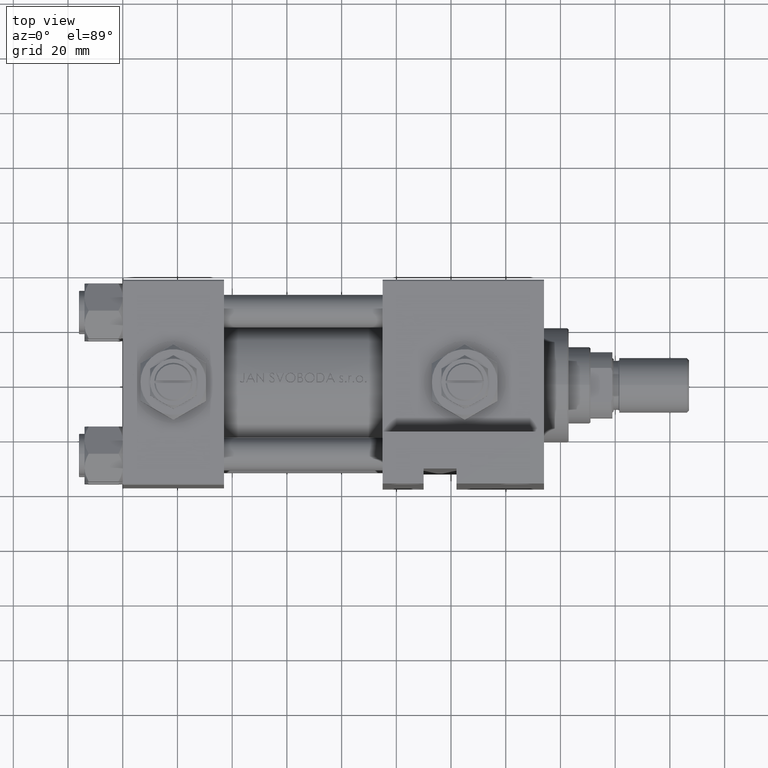
[diagram: clean part render]
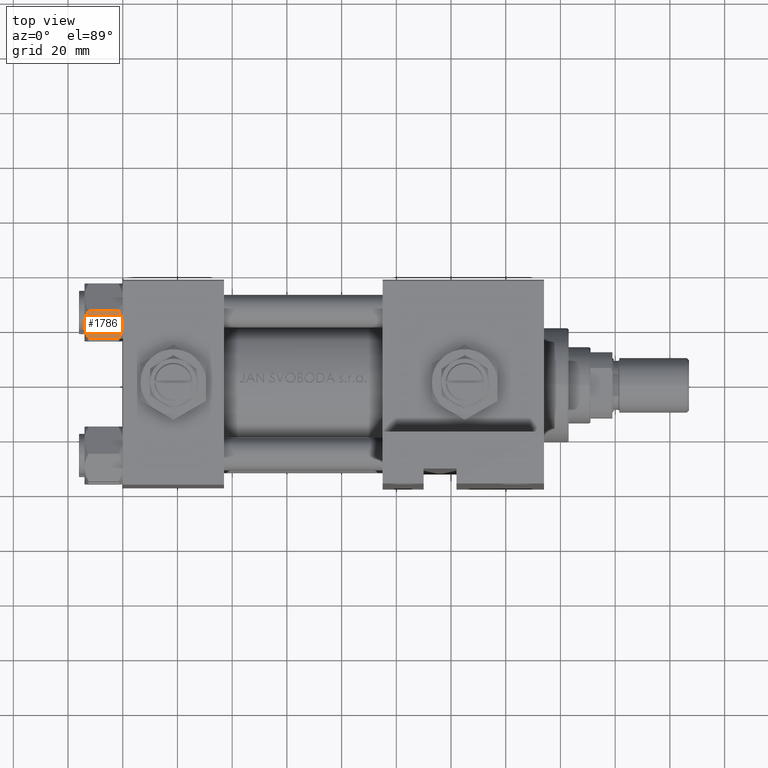
[diagram: same view with one face highlighted and labeled with its STEP entity id]
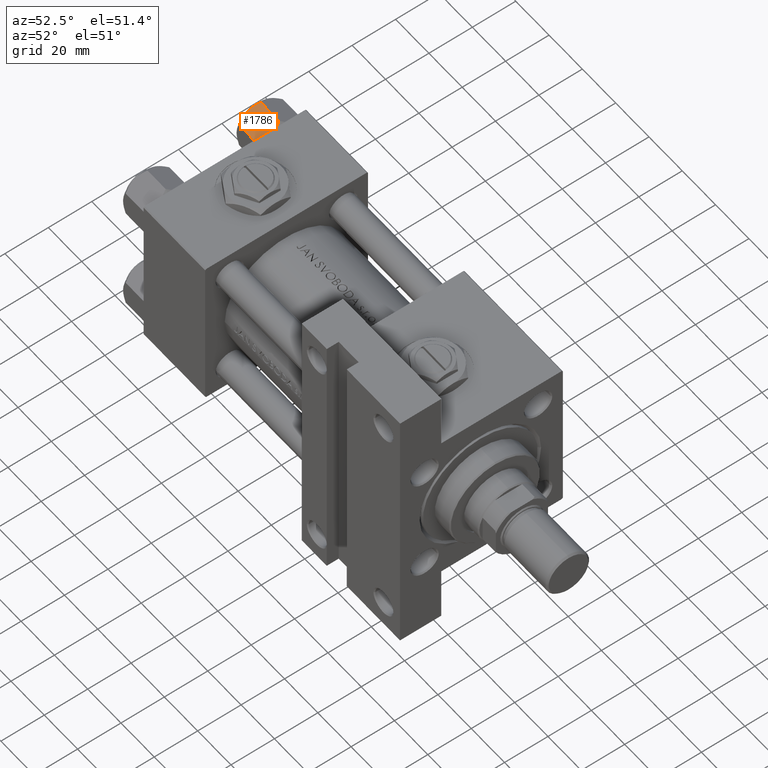
[diagram: same view with one face highlighted and labeled with its STEP entity id]
A machine part, top view. The second image highlights one B-rep face of the part: STEP entity #1786.
A second angle (auxiliary view) of the same face is appended — the face is thin or edge-on in the first view.
In plain terms, the highlighted planar face has unit normal (0, 0.5, -0.866).
Its self-contained STEP definition (entity closure, byte-faithful):
#304 = FACE_OUTER_BOUND ( 'NONE', #34953, .T. ) ;
#314 = ORIENTED_EDGE ( 'NONE', *, *, #44564, .F. ) ;
#1359 = CARTESIAN_POINT ( 'NONE',  ( 11.62000000000000099, -1.924525737834042474E-15, -1.556784808024813893 ) ) ;
#1662 = CARTESIAN_POINT ( 'NONE',  ( 8.460569896449618099, -5.472293462311865753, 3.427848222766236415E-15 ) ) ;
#1786 = ADVANCED_FACE ( 'NONE', ( #304 ), #22641, .F. ) ;
#1795 = CARTESIAN_POINT ( 'NONE',  ( 11.16445427487472131, -0.7890283410877986237, -12.89876091710047135 ) ) ;
#3288 = CARTESIAN_POINT ( 'NONE',  ( 10.69662495661650503, -1.599332489581334560, -0.7114554706434483844 ) ) ;
#4956 = CARTESIAN_POINT ( 'NONE',  ( 8.715000000000003411, -5.031607595987592774, 0.000000000000000000 ) ) ;
#5352 = CARTESIAN_POINT ( 'NONE',  ( 8.969430103550381617, -4.590921729663316242, -14.00000000000000178 ) ) ;
#5596 = CARTESIAN_POINT ( 'NONE',  ( 11.62000000000000099, -1.689012838886770227E-15, -12.44321519197518633 ) ) ;
#6658 = ORIENTED_EDGE ( 'NONE', *, *, #9718, .T. ) ;
#6744 = VECTOR ( 'NONE', #16173, 1000.000000000000000 ) ;
#7208 = CARTESIAN_POINT ( 'NONE',  ( 7.713000053756305263, -6.767122412062954062, -13.84547602999601956 ) ) ;
#7246 = ORIENTED_EDGE ( 'NONE', *, *, #18246, .F. ) ;
#7411 = DIRECTION ( 'NONE',  ( -0.8660254037844385966, 0.5000000000000002220, 0.000000000000000000 ) ) ;
#7999 = LINE ( 'NONE', #22542, #19262 ) ;
#9718 = EDGE_CURVE ( 'NONE', #46074, #49419, #47856, .T. ) ;
#11278 = CARTESIAN_POINT ( 'NONE',  ( 8.715000000000003411, -5.031607595987592774, -14.00000000000000000 ) ) ;
#11518 = AXIS2_PLACEMENT_3D ( 'NONE', #42165, #7411, #38368 ) ;
#12308 = DIRECTION ( 'NONE',  ( -0.000000000000000000, -0.000000000000000000, 1.000000000000000000 ) ) ;
#12597 = B_SPLINE_CURVE_WITH_KNOTS ( 'NONE', 3,
 ( #5596, #1795, #21079, #24638, #48962, #14239, #5352, #36553 ),
 .UNSPECIFIED., .F., .F.,
 ( 4, 2, 2, 4 ),
 ( 2.544312114904007178E-07, 0.003011550106433541225, 0.004517197944044565316, 0.006022845781655588975 ),
 .UNSPECIFIED. ) ;
#12846 = CARTESIAN_POINT ( 'NONE',  ( 8.202333004087897450, -5.919572880271052995, -0.03994118060690592109 ) ) ;
#12868 = CARTESIAN_POINT ( 'NONE',  ( 11.62000000000000099, -1.813166800014576593E-15, -14.00000000000000000 ) ) ;
#14239 = CARTESIAN_POINT ( 'NONE',  ( 9.227666995912100489, -4.143642311704125447, -13.96005881939309212 ) ) ;
#14584 = CARTESIAN_POINT ( 'NONE',  ( 5.810000000000000497, -10.06321519197517667, -1.556784808024811895 ) ) ;
#16173 = DIRECTION ( 'NONE',  ( -0.000000000000000000, -0.000000000000000000, 1.000000000000000000 ) ) ;
#16291 = CARTESIAN_POINT ( 'NONE',  ( 8.715000000000003411, -5.031607595987592774, -14.00000000000000000 ) ) ;
#18246 = EDGE_CURVE ( 'NONE', #33318, #47376, #50184, .T. ) ;
#18531 = CARTESIAN_POINT ( 'NONE',  ( 11.62000000000000099, -1.924525737834042474E-15, -1.556784808024813893 ) ) ;
#18887 = CARTESIAN_POINT ( 'NONE',  ( 6.733375043383495573, -8.463882702393842550, -13.28854452935654962 ) ) ;
#19032 = CARTESIAN_POINT ( 'NONE',  ( 9.220295946303432189, -4.156409344131454020, 3.521962994683380021E-15 ) ) ;
#19150 = CARTESIAN_POINT ( 'NONE',  ( 8.209704053696569304, -5.906805847843727086, -14.00000000000000178 ) ) ;
#19262 = VECTOR ( 'NONE', #12308, 1000.000000000000000 ) ;
#20287 = VERTEX_POINT ( 'NONE', #40428 ) ;
#21079 = CARTESIAN_POINT ( 'NONE',  ( 10.69859855102500923, -1.595914123792265160, -13.28585617404753627 ) ) ;
#22542 = CARTESIAN_POINT ( 'NONE',  ( 5.810000000000000497, -10.06321519197517667, -14.00000000000000000 ) ) ;
#22641 = PLANE ( 'NONE',  #11518 ) ;
#22681 = CARTESIAN_POINT ( 'NONE',  ( 5.810000000000000497, -10.06321519197517667, -12.44321519197518811 ) ) ;
#24638 = CARTESIAN_POINT ( 'NONE',  ( 9.974696630283190757, -2.849749030213793777, -13.69973261901325934 ) ) ;
#24761 = CARTESIAN_POINT ( 'NONE',  ( 6.731401448974991375, -8.467301068182914392, -0.7141438259524641730 ) ) ;
#26388 = CARTESIAN_POINT ( 'NONE',  ( 8.715000000000003411, -5.031607595987592774, 0.000000000000000000 ) ) ;
#26930 = B_SPLINE_CURVE_WITH_KNOTS ( 'NONE', 3,
 ( #44021, #28079, #24761, #39725, #36426, #12846, #1662, #4956 ),
 .UNSPECIFIED., .F., .F.,
 ( 4, 2, 2, 4 ),
 ( 2.544312114902182352E-07, 0.003011550106433539056, 0.004517197944044561847, 0.006022845781655586372 ),
 .UNSPECIFIED. ) ;
#28079 = CARTESIAN_POINT ( 'NONE',  ( 6.265545725125285514, -9.274186850887382150, -1.101239082899530430 ) ) ;
#28356 = ORIENTED_EDGE ( 'NONE', *, *, #37601, .F. ) ;
#28928 = CARTESIAN_POINT ( 'NONE',  ( 5.810000000000000497, -10.06321519197517667, -12.44321519197518811 ) ) ;
#30050 = CARTESIAN_POINT ( 'NONE',  ( 6.265018354709780191, -9.275100283241448196, -12.89823354668505395 ) ) ;
#31082 = VERTEX_POINT ( 'NONE', #14584 ) ;
#31773 = CARTESIAN_POINT ( 'NONE',  ( 11.62000000000000099, -1.689012838886770227E-15, -12.44321519197518633 ) ) ;
#32394 = ORIENTED_EDGE ( 'NONE', *, *, #33492, .F. ) ;
#33318 = VERTEX_POINT ( 'NONE', #16291 ) ;
#33492 = EDGE_CURVE ( 'NONE', #46074, #33318, #12597, .T. ) ;
#34241 = CARTESIAN_POINT ( 'NONE',  ( 11.16498164529022574, -0.7881149087337312453, -1.101766453314952487 ) ) ;
#34650 = ORIENTED_EDGE ( 'NONE', *, *, #34933, .F. ) ;
#34750 = CARTESIAN_POINT ( 'NONE',  ( 9.716999946243698005, -3.296092779912227932, -0.1545239700039822972 ) ) ;
#34933 = EDGE_CURVE ( 'NONE', #47376, #31082, #7999, .T. ) ;
#34953 = EDGE_LOOP ( 'NONE', ( #32394, #6658, #28356, #314, #34650, #7246 ) ) ;
#36426 = CARTESIAN_POINT ( 'NONE',  ( 7.700834831386344170, -6.788193195293096061, -0.1903979688073396681 ) ) ;
#36553 = CARTESIAN_POINT ( 'NONE',  ( 8.715000000000003411, -5.031607595987592774, -14.00000000000000000 ) ) ;
#37601 = EDGE_CURVE ( 'NONE', #20287, #49419, #40108, .T. ) ;
#38368 = DIRECTION ( 'NONE',  ( -0.5000000000000001110, -0.8660254037844384856, 0.000000000000000000 ) ) ;
#39725 = CARTESIAN_POINT ( 'NONE',  ( 7.455303369716807182, -7.213466161761383333, -0.3002673809867365540 ) ) ;
#40108 = B_SPLINE_CURVE_WITH_KNOTS ( 'NONE', 3,
 ( #26388, #19032, #34750, #3288, #34241, #18531 ),
 .UNSPECIFIED., .F., .F.,
 ( 4, 2, 4 ),
 ( 0.006022845781655586372, 0.009013049135303633289, 0.01200325248895168020 ),
 .UNSPECIFIED. ) ;
#40428 = CARTESIAN_POINT ( 'NONE',  ( 8.715000000000003411, -5.031607595987592774, 0.000000000000000000 ) ) ;
#42165 = CARTESIAN_POINT ( 'NONE',  ( 11.62000000000000099, -1.813166800014576593E-15, -14.00000000000000000 ) ) ;
#44021 = CARTESIAN_POINT ( 'NONE',  ( 5.810000000000000497, -10.06321519197517667, -1.556784808024811895 ) ) ;
#44564 = EDGE_CURVE ( 'NONE', #31082, #20287, #26930, .T. ) ;
#46074 = VERTEX_POINT ( 'NONE', #31773 ) ;
#47376 = VERTEX_POINT ( 'NONE', #28928 ) ;
#47856 = LINE ( 'NONE', #12868, #6744 ) ;
#48962 = CARTESIAN_POINT ( 'NONE',  ( 9.729165168613651105, -3.275021996682085046, -13.80960203119265906 ) ) ;
#49419 = VERTEX_POINT ( 'NONE', #1359 ) ;
#50184 = B_SPLINE_CURVE_WITH_KNOTS ( 'NONE', 3,
 ( #11278, #19150, #7208, #18887, #30050, #22681 ),
 .UNSPECIFIED., .F., .F.,
 ( 4, 2, 4 ),
 ( 0.006022845781655588975, 0.009013049135303631554, 0.01200325248895167674 ),
 .UNSPECIFIED. ) ;